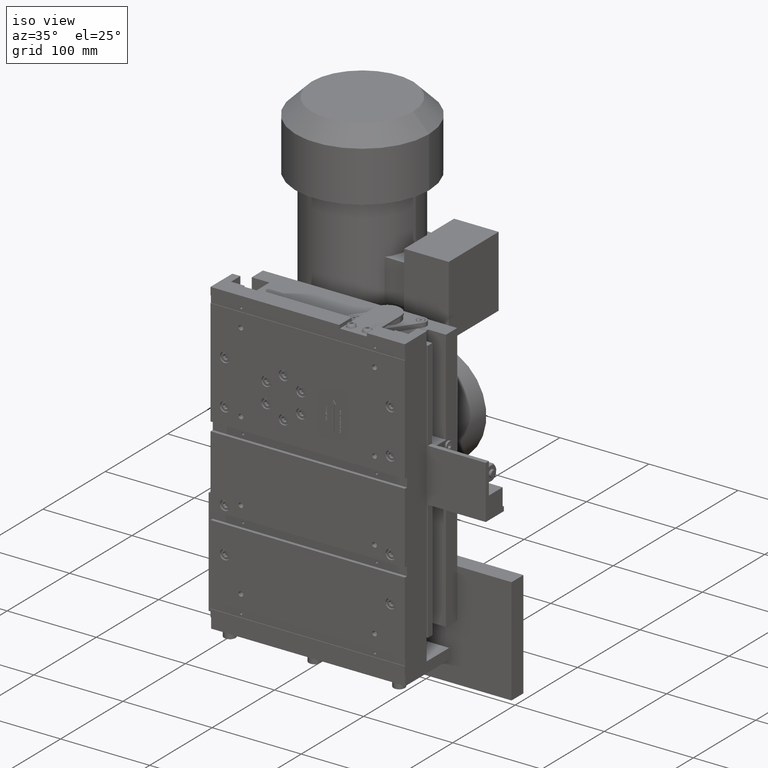
[diagram: clean part render]
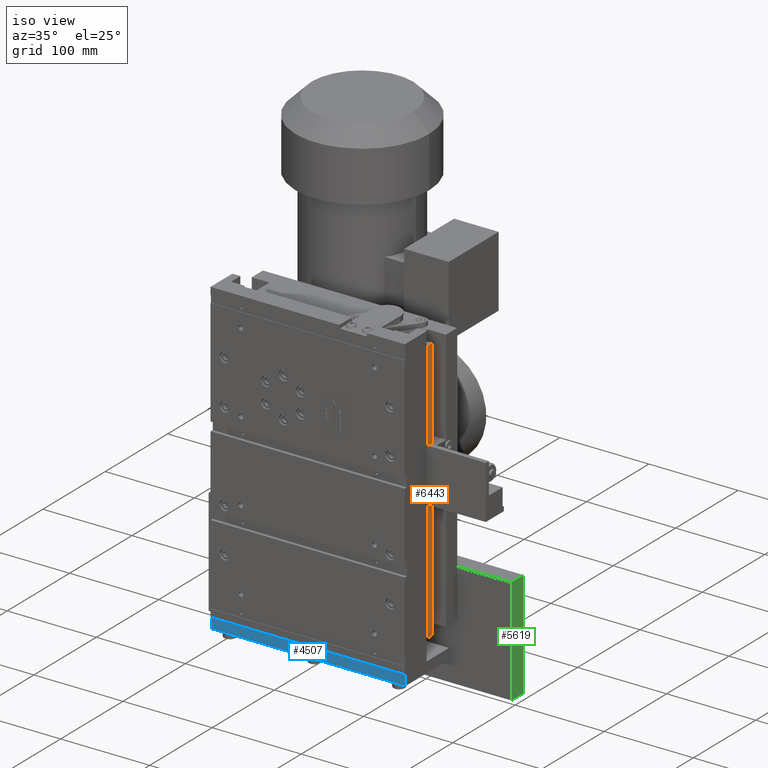
[diagram: same view with three faces highlighted in distinct colors, each labeled with its STEP entity id]
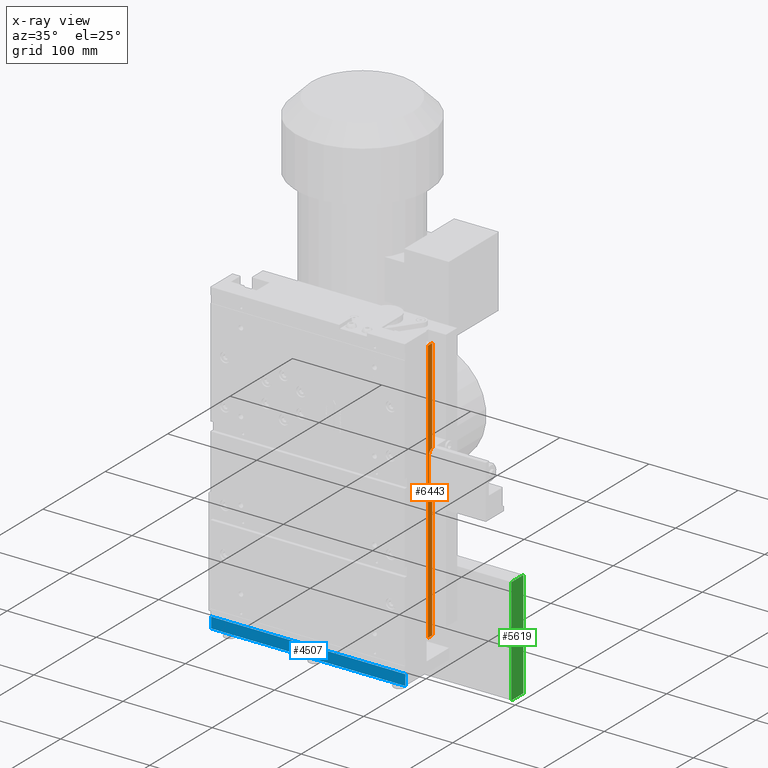
[diagram: x-ray of the same camera — body ghosted, the three highlighted faces saturated]
A machine part, iso view with three faces highlighted in distinct colors.
The next image is the same camera in x-ray (body ghosted, the three faces saturated) — at least one of them is partly hidden behind the body in this view.
Their STEP definitions:

[orange] entity #6443 — the highlighted planar face has unit normal (-1, 0, 0).
#6443=ADVANCED_FACE('',(#13020),#13021,.F.);
#13020=FACE_OUTER_BOUND('',#22394,.T.);
#13021=PLANE('',#22395);
#22394=EDGE_LOOP('',(#37223,#37224,#37225,#37226,#37227,#37228,#37229,#37230));
#22395=AXIS2_PLACEMENT_3D('',#37231,#37232,#37233);
#37223=ORIENTED_EDGE('',*,*,#52595,.T.);
#37224=ORIENTED_EDGE('',*,*,#53296,.T.);
#37225=ORIENTED_EDGE('',*,*,#51238,.T.);
#37226=ORIENTED_EDGE('',*,*,#49132,.F.);
#37227=ORIENTED_EDGE('',*,*,#53297,.T.);
#37228=ORIENTED_EDGE('',*,*,#53298,.T.);
#37229=ORIENTED_EDGE('',*,*,#53299,.T.);
#37230=ORIENTED_EDGE('',*,*,#48211,.T.);
#37231=CARTESIAN_POINT('',(22.9999999999430,-30.5555555555556,27.7777777777778));
#37232=DIRECTION('',(-1.00000000000000,0.000000000000000,0.000000000000000));
#37233=DIRECTION('',(0.000000000000000,0.000000000000000,1.00000000000000));
#48211=EDGE_CURVE('',#56458,#56459,#56460,.T.);
#49132=EDGE_CURVE('',#58090,#58060,#58092,.T.);
#51238=EDGE_CURVE('',#61610,#58060,#61611,.T.);
#52595=EDGE_CURVE('',#56459,#63678,#63679,.T.);
#53296=EDGE_CURVE('',#63678,#61610,#64678,.T.);
#53297=EDGE_CURVE('',#58090,#64679,#64680,.T.);
#53298=EDGE_CURVE('',#64679,#64681,#64682,.T.);
#53299=EDGE_CURVE('',#64681,#56458,#64683,.T.);
#56458=VERTEX_POINT('',#68580);
#56459=VERTEX_POINT('',#68581);
#56460=CIRCLE('',#68582,5.00000000000000);
#58060=VERTEX_POINT('',#70957);
#58090=VERTEX_POINT('',#71003);
#58092=LINE('',#71006,#71007);
#61610=VERTEX_POINT('',#76223);
#61611=LINE('',#76224,#76225);
#63678=VERTEX_POINT('',#79320);
#63679=LINE('',#79321,#79322);
#64678=CIRCLE('',#80819,5.00000000000000);
#64679=VERTEX_POINT('',#80820);
#64680=LINE('',#80821,#80822);
#64681=VERTEX_POINT('',#80823);
#64682=LINE('',#80824,#80825);
#64683=LINE('',#80826,#80827);
#68580=CARTESIAN_POINT('',(22.9999999999431,-20.5555555555518,-118.722222222396));
#68581=CARTESIAN_POINT('',(22.9999999999431,-25.5555555555518,-113.722222222396));
#68582=AXIS2_PLACEMENT_3D('',#85884,#85885,#85886);
#70957=CARTESIAN_POINT('',(22.9999999999425,-20.5555555555556,27.7777777777778));
#71003=CARTESIAN_POINT('',(22.9999999999430,-27.5555555555550,27.7777777777778));
#71006=CARTESIAN_POINT('',(22.9999999999430,-30.5555555555556,27.7777777777778));
#71007=VECTOR('',#86771,1.00000000000000);
#76223=CARTESIAN_POINT('',(22.9999999999431,-20.5555555555518,-78.7222222223965));
#76224=CARTESIAN_POINT('',(22.9999999999425,-20.5555555555556,-268.722222222289));
#76225=VECTOR('',#88709,1.00000000000000);
#79320=CARTESIAN_POINT('',(22.9999999999431,-25.5555555555518,-83.7222222223965));
#79321=CARTESIAN_POINT('',(22.9999999999431,-25.5555555555518,-113.722222222396));
#79322=VECTOR('',#89926,1.00000000000000);
#80819=AXIS2_PLACEMENT_3D('',#90513,#90514,#90515);
#80820=CARTESIAN_POINT('',(22.9999999999430,-27.5555555555550,-268.722222222289));
#80821=CARTESIAN_POINT('',(22.9999999999430,-27.5555555555550,27.7777777777778));
#80822=VECTOR('',#90516,1.00000000000000);
#80823=CARTESIAN_POINT('',(22.9999999999425,-20.5555555555556,-268.722222222289));
#80824=CARTESIAN_POINT('',(22.9999999999430,-30.5555555555556,-268.722222222289));
#80825=VECTOR('',#90517,1.00000000000000);
#80826=CARTESIAN_POINT('',(22.9999999999425,-20.5555555555556,-268.722222222289));
#80827=VECTOR('',#90518,1.00000000000000);
#85884=CARTESIAN_POINT('',(22.9999999999431,-20.5555555555518,-113.722222222396));
#85885=DIRECTION('',(-1.00000000000000,0.000000000000000,0.000000000000000));
#85886=DIRECTION('',(0.000000000000000,1.00000000000000,0.000000000000000));
#86771=DIRECTION('',(0.000000000000000,1.00000000000000,0.000000000000000));
#88709=DIRECTION('',(0.000000000000000,0.000000000000000,1.00000000000000));
#89926=DIRECTION('',(0.000000000000000,0.000000000000000,1.00000000000000));
#90513=CARTESIAN_POINT('',(22.9999999999431,-20.5555555555518,-83.7222222223965));
#90514=DIRECTION('',(-1.00000000000000,0.000000000000000,0.000000000000000));
#90515=DIRECTION('',(0.000000000000000,1.00000000000000,0.000000000000000));
#90516=DIRECTION('',(0.000000000000000,0.000000000000000,-1.00000000000000));
#90517=DIRECTION('',(0.000000000000000,1.00000000000000,0.000000000000000));
#90518=DIRECTION('',(0.000000000000000,0.000000000000000,1.00000000000000));

[blue] entity #4507 — the highlighted planar face has unit normal (0, 1, 0).
#4507=ADVANCED_FACE('',(#9937),#9938,.F.);
#9937=FACE_OUTER_BOUND('',#18381,.T.);
#9938=PLANE('',#18382);
#18381=EDGE_LOOP('',(#28816,#28817,#28818,#28819));
#18382=AXIS2_PLACEMENT_3D('',#28820,#28821,#28822);
#28816=ORIENTED_EDGE('',*,*,#48987,.T.);
#28817=ORIENTED_EDGE('',*,*,#48300,.F.);
#28818=ORIENTED_EDGE('',*,*,#48988,.F.);
#28819=ORIENTED_EDGE('',*,*,#48989,.T.);
#28820=CARTESIAN_POINT('',(-193.000000000028,-19.4444444444445,27.7777777777778));
#28821=DIRECTION('',(0.000000000000000,1.00000000000000,0.000000000000000));
#28822=DIRECTION('',(0.000000000000000,0.000000000000000,1.00000000000000));
#48300=EDGE_CURVE('',#56615,#56610,#56617,.T.);
#48987=EDGE_CURVE('',#57829,#56610,#57830,.T.);
#48988=EDGE_CURVE('',#57831,#56615,#57832,.T.);
#48989=EDGE_CURVE('',#57831,#57829,#57833,.T.);
#56610=VERTEX_POINT('',#68811);
#56615=VERTEX_POINT('',#68818);
#56617=LINE('',#68821,#68822);
#57829=VERTEX_POINT('',#70633);
#57830=LINE('',#70634,#70635);
#57831=VERTEX_POINT('',#70636);
#57832=LINE('',#70637,#70638);
#57833=LINE('',#70639,#70640);
#68811=CARTESIAN_POINT('',(25.0000000000000,-19.4444444444445,15.7777777777778));
#68818=CARTESIAN_POINT('',(25.0000000000000,-19.4444444444445,27.7777777777778));
#68821=CARTESIAN_POINT('',(25.0000000000000,-19.4444444444445,27.7777777777778));
#68822=VECTOR('',#85966,1.00000000000000);
#70633=CARTESIAN_POINT('',(-193.000000000028,-19.4444444444445,15.7777777777778));
#70634=CARTESIAN_POINT('',(-193.000000000028,-19.4444444444445,15.7777777777778));
#70635=VECTOR('',#86619,1.00000000000000);
#70636=CARTESIAN_POINT('',(-193.000000000028,-19.4444444444445,27.7777777777778));
#70637=CARTESIAN_POINT('',(-193.000000000028,-19.4444444444445,27.7777777777778));
#70638=VECTOR('',#86620,1.00000000000000);
#70639=CARTESIAN_POINT('',(-193.000000000028,-19.4444444444445,27.7777777777778));
#70640=VECTOR('',#86621,1.00000000000000);
#85966=DIRECTION('',(0.000000000000000,0.000000000000000,-1.00000000000000));
#86619=DIRECTION('',(1.00000000000000,0.000000000000000,0.000000000000000));
#86620=DIRECTION('',(1.00000000000000,0.000000000000000,0.000000000000000));
#86621=DIRECTION('',(0.000000000000000,0.000000000000000,-1.00000000000000));

[green] entity #5619 — the highlighted planar face has unit normal (-1, 0, 0).
#5619=ADVANCED_FACE('',(#11699),#11700,.F.);
#11699=FACE_OUTER_BOUND('',#20143,.T.);
#11700=PLANE('',#20144);
#20143=EDGE_LOOP('',(#33698,#33699,#33700,#33701));
#20144=AXIS2_PLACEMENT_3D('',#33702,#33703,#33704);
#33698=ORIENTED_EDGE('',*,*,#48783,.T.);
#33699=ORIENTED_EDGE('',*,*,#51699,.F.);
#33700=ORIENTED_EDGE('',*,*,#51700,.F.);
#33701=ORIENTED_EDGE('',*,*,#50155,.T.);
#33702=CARTESIAN_POINT('',(-87.5837336560608,-104.677490816358,-189.058620167230));
#33703=DIRECTION('',(-1.00000000000000,0.000000000000000,0.000000000000000));
#33704=DIRECTION('',(0.000000000000000,0.000000000000000,1.00000000000000));
#48783=EDGE_CURVE('',#57483,#57481,#57484,.T.);
#50155=EDGE_CURVE('',#59815,#57483,#59816,.T.);
#51699=EDGE_CURVE('',#62311,#57481,#62312,.T.);
#51700=EDGE_CURVE('',#59815,#62311,#62313,.T.);
#57481=VERTEX_POINT('',#70142);
#57483=VERTEX_POINT('',#70145);
#57484=LINE('',#70146,#70147);
#59815=VERTEX_POINT('',#73565);
#59816=LINE('',#73566,#73567);
#62311=VERTEX_POINT('',#77288);
#62312=LINE('',#77289,#77290);
#62313=LINE('',#77291,#77292);
#70142=CARTESIAN_POINT('',(-87.5837336560608,-85.6774908163583,-309.058620167231));
#70145=CARTESIAN_POINT('',(-87.5837336560608,-104.677490816358,-309.058620167231));
#70146=CARTESIAN_POINT('',(-87.5837336560608,-104.677490816358,-309.058620167231));
#70147=VECTOR('',#86425,1.00000000000000);
#73565=CARTESIAN_POINT('',(-87.5837336560608,-104.677490816358,-189.058620167230));
#73566=CARTESIAN_POINT('',(-87.5837336560608,-104.677490816358,-189.058620167230));
#73567=VECTOR('',#87682,1.00000000000000);
#77288=CARTESIAN_POINT('',(-87.5837336560608,-85.6774908163583,-189.058620167230));
#77289=CARTESIAN_POINT('',(-87.5837336560608,-85.6774908163583,-189.058620167230));
#77290=VECTOR('',#89102,1.00000000000000);
#77291=CARTESIAN_POINT('',(-87.5837336560608,-104.677490816358,-189.058620167230));
#77292=VECTOR('',#89103,1.00000000000000);
#86425=DIRECTION('',(0.000000000000000,1.00000000000000,0.000000000000000));
#87682=DIRECTION('',(0.000000000000000,0.000000000000000,-1.00000000000000));
#89102=DIRECTION('',(0.000000000000000,0.000000000000000,-1.00000000000000));
#89103=DIRECTION('',(0.000000000000000,1.00000000000000,0.000000000000000));